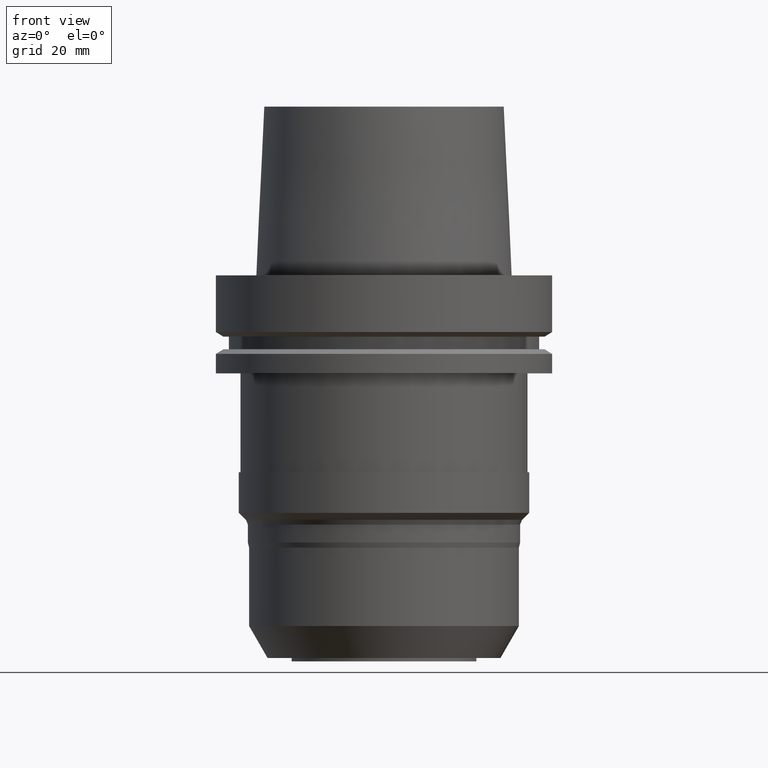
[diagram: clean part render]
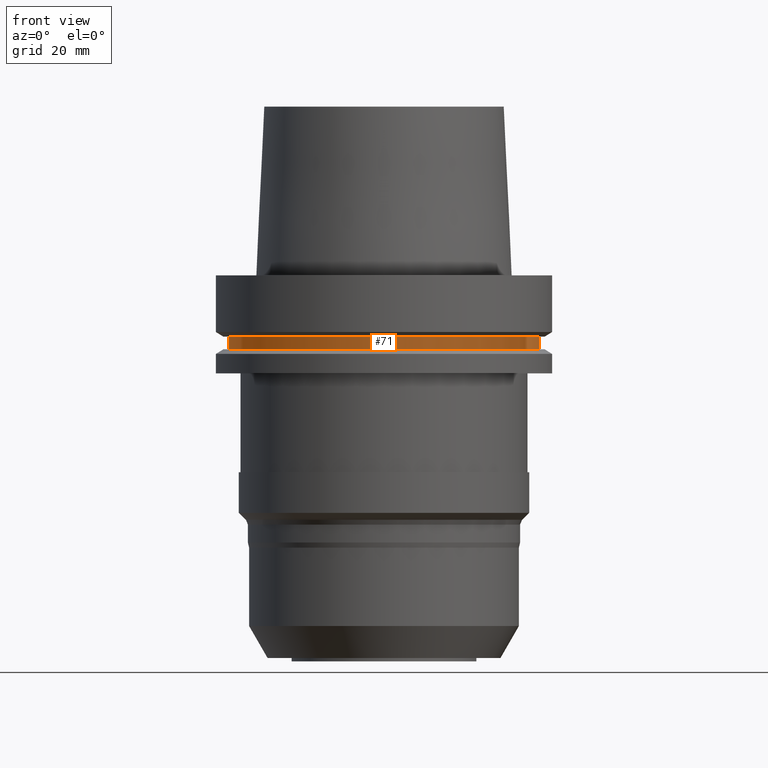
[diagram: same view with one face highlighted and labeled with its STEP entity id]
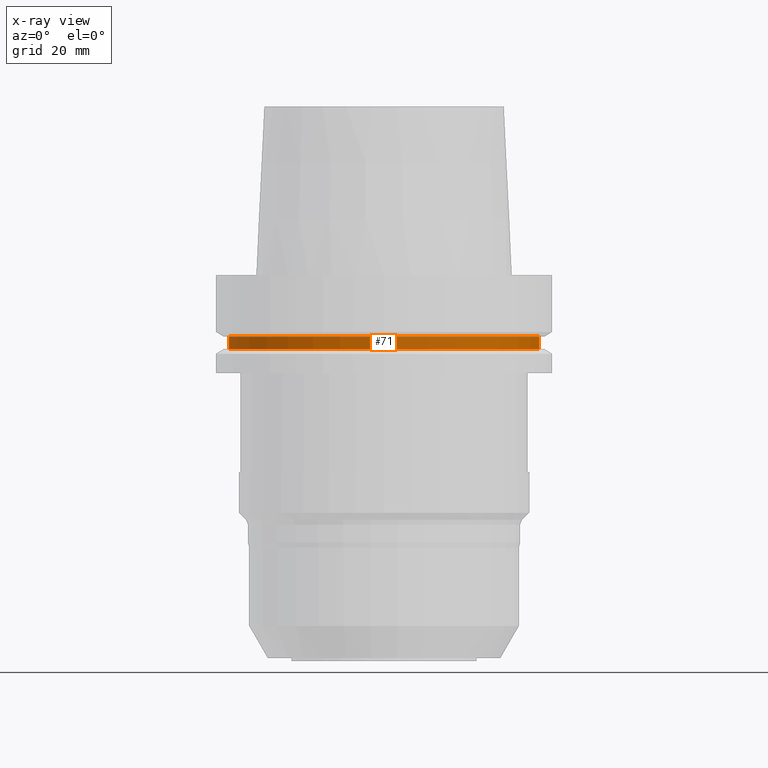
[diagram: x-ray of the same camera — body ghosted, the highlighted face saturated]
A machine part, front view. The second image highlights one B-rep face of the part: STEP entity #71.
The next image is the same camera in x-ray: the body ghosted, the highlighted face saturated — about 0% of this face is hidden behind the body in this view.
In plain terms, the highlighted cylindrical surface (bore or boss wall) has radius 46 mm, axis along (0, 0, -1).
Its self-contained STEP definition (entity closure, byte-faithful):
#71=ADVANCED_FACE('Unnamed[1]',(#203,#204),#205,.T.);
#85=EDGE_CURVE('Unnamed[1]',#225,#225,#226,.T.);
#177=EDGE_CURVE('Unnamed[1]',#370,#370,#371,.T.);
#203=FACE_BOUND('',#392,.T.);
#204=FACE_BOUND('',#393,.T.);
#205=CYLINDRICAL_SURFACE('',#394,46.0000000000001);
#225=VERTEX_POINT('',#420);
#226=CIRCLE('',#421,46.0000000000001);
#370=VERTEX_POINT('',#600);
#371=CIRCLE('',#601,46.0000000000001);
#392=EDGE_LOOP('',(#618));
#393=EDGE_LOOP('',(#619));
#394=AXIS2_PLACEMENT_3D('',#620,#621,#622);
#420=CARTESIAN_POINT('',(1.33945743656734E-015,46.0,-21.8749999999988));
#421=AXIS2_PLACEMENT_3D('',#643,#644,#645);
#600=CARTESIAN_POINT('',(1.10983616172727E-015,46.0,-18.1249999999997));
#601=AXIS2_PLACEMENT_3D('',#805,#806,#807);
#618=ORIENTED_EDGE('',*,*,#85,.F.);
#619=ORIENTED_EDGE('',*,*,#177,.T.);
#620=CARTESIAN_POINT('',(1.22464679914731E-015,-3.8764735120505E-014,-19.9999999999993));
#621=DIRECTION('',(6.12323399573677E-017,5.38768000306636E-016,-1.0));
#622=DIRECTION('',(-3.78171780836977E-032,1.0,5.38768000306636E-016));
#643=CARTESIAN_POINT('',(1.33945743656735E-015,-3.77545451199302E-014,-21.8749999999988));
#644=DIRECTION('',(6.12323399573677E-017,5.38768000306636E-016,-1.0));
#645=DIRECTION('',(-3.78171780836977E-032,1.0,5.38768000306636E-016));
#805=CARTESIAN_POINT('',(1.10983616172727E-015,-3.97749251210797E-014,-18.1249999999997));
#806=DIRECTION('',(6.12323399573677E-017,5.38768000306636E-016,-1.0));
#807=DIRECTION('',(-3.78171780836977E-032,1.0,5.38768000306636E-016));